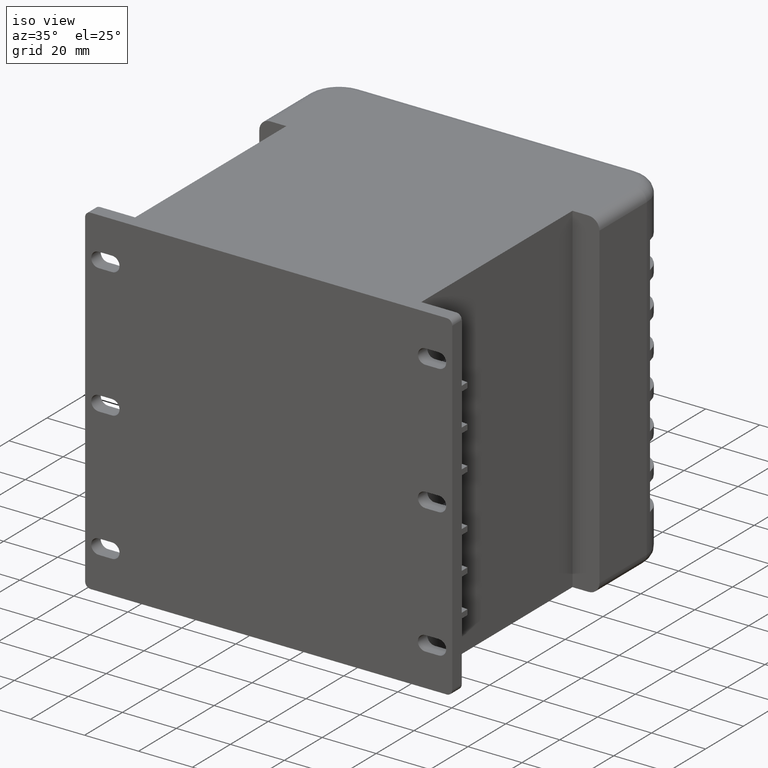
[diagram: clean part render]
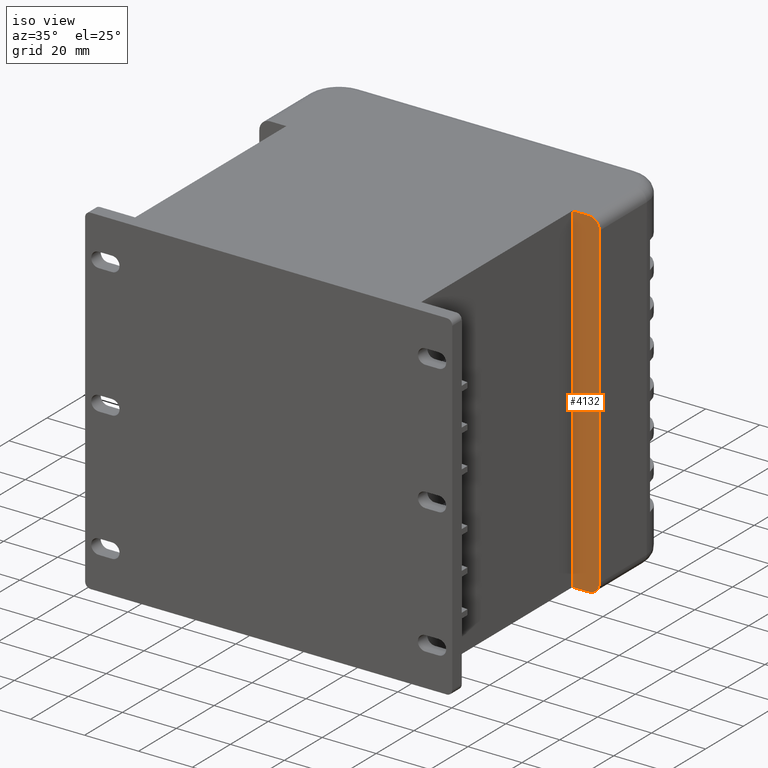
[diagram: same view with one face highlighted and labeled with its STEP entity id]
A machine part, iso view. The second image highlights one B-rep face of the part: STEP entity #4132.
In plain terms, the highlighted planar face has unit normal (0, 1, 0).
Its self-contained STEP definition (entity closure, byte-faithful):
#160=CIRCLE('',#4542,4.);
#161=CIRCLE('',#4543,4.);
#419=FACE_OUTER_BOUND('',#678,.T.);
#678=EDGE_LOOP('',(#3088,#3089,#3090,#3091,#3092,#3093));
#1062=LINE('',#6536,#1454);
#1071=LINE('',#6557,#1463);
#1072=LINE('',#6561,#1464);
#1073=LINE('',#6564,#1465);
#1454=VECTOR('',#5351,10.);
#1463=VECTOR('',#5370,10.);
#1464=VECTOR('',#5373,10.);
#1465=VECTOR('',#5376,10.);
#1806=VERTEX_POINT('',#6534);
#1807=VERTEX_POINT('',#6535);
#1814=VERTEX_POINT('',#6556);
#1815=VERTEX_POINT('',#6558);
#1816=VERTEX_POINT('',#6560);
#1817=VERTEX_POINT('',#6562);
#2254=EDGE_CURVE('',#1806,#1807,#1062,.T.);
#2265=EDGE_CURVE('',#1814,#1807,#1071,.T.);
#2266=EDGE_CURVE('',#1815,#1814,#160,.T.);
#2267=EDGE_CURVE('',#1816,#1815,#1072,.T.);
#2268=EDGE_CURVE('',#1817,#1816,#161,.T.);
#2269=EDGE_CURVE('',#1806,#1817,#1073,.T.);
#3088=ORIENTED_EDGE('',*,*,#2254,.T.);
#3089=ORIENTED_EDGE('',*,*,#2265,.F.);
#3090=ORIENTED_EDGE('',*,*,#2266,.F.);
#3091=ORIENTED_EDGE('',*,*,#2267,.F.);
#3092=ORIENTED_EDGE('',*,*,#2268,.F.);
#3093=ORIENTED_EDGE('',*,*,#2269,.F.);
#3659=PLANE('',#4541);
#4132=ADVANCED_FACE('',(#419),#3659,.F.);
#4541=AXIS2_PLACEMENT_3D('',#6555,#5368,#5369);
#4542=AXIS2_PLACEMENT_3D('',#6559,#5371,#5372);
#4543=AXIS2_PLACEMENT_3D('',#6563,#5374,#5375);
#5351=DIRECTION('',(1.76225876924628E-16,0.,-1.));
#5368=DIRECTION('center_axis',(0.,1.,0.));
#5369=DIRECTION('ref_axis',(0.,0.,1.));
#5370=DIRECTION('',(-1.,0.,0.));
#5371=DIRECTION('center_axis',(0.,1.,0.));
#5372=DIRECTION('ref_axis',(0.707106781186547,0.,-0.707106781186548));
#5373=DIRECTION('',(-3.41426618094879E-16,0.,-1.));
#5374=DIRECTION('center_axis',(0.,1.,0.));
#5375=DIRECTION('ref_axis',(0.707106781186546,0.,0.707106781186549));
#5376=DIRECTION('',(1.,0.,2.81961403079405E-16));
#6534=CARTESIAN_POINT('',(-10.,0.,126.));
#6535=CARTESIAN_POINT('',(-10.,0.,3.5527136788005E-14));
#6536=CARTESIAN_POINT('',(-10.,0.,94.5));
#6555=CARTESIAN_POINT('Origin',(-63.,0.,63.));
#6556=CARTESIAN_POINT('',(-4.,0.,0.));
#6557=CARTESIAN_POINT('',(0.,0.,0.));
#6558=CARTESIAN_POINT('',(1.36570647237952E-15,0.,4.));
#6559=CARTESIAN_POINT('Origin',(-4.,0.,4.));
#6560=CARTESIAN_POINT('',(4.16540474075753E-14,0.,122.));
#6561=CARTESIAN_POINT('',(4.30197538799548E-14,0.,126.));
#6562=CARTESIAN_POINT('',(-3.99999999999997,0.,126.));
#6563=CARTESIAN_POINT('Origin',(-3.99999999999996,0.,122.));
#6564=CARTESIAN_POINT('',(-126.,0.,126.));